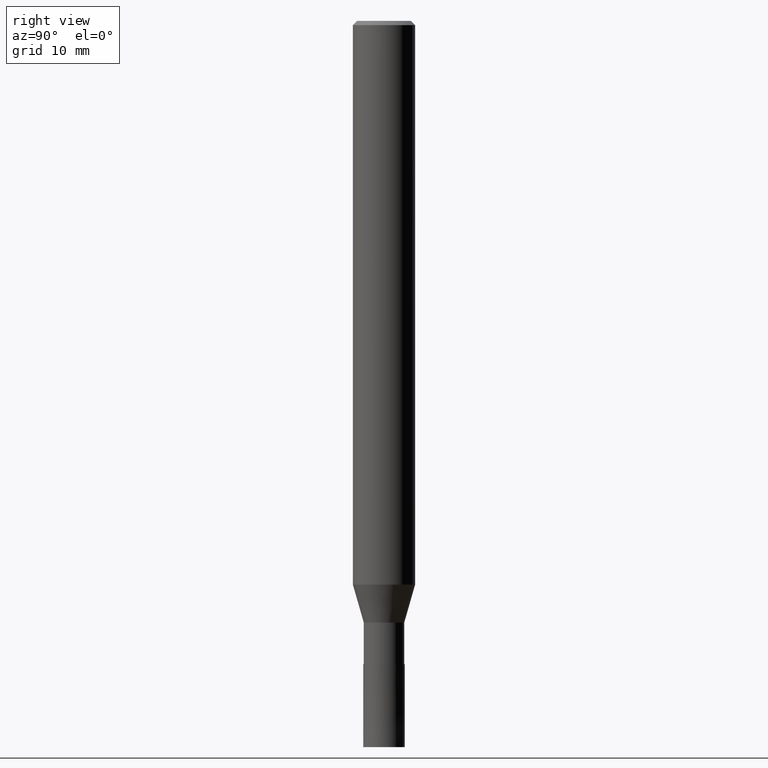
[diagram: clean part render]
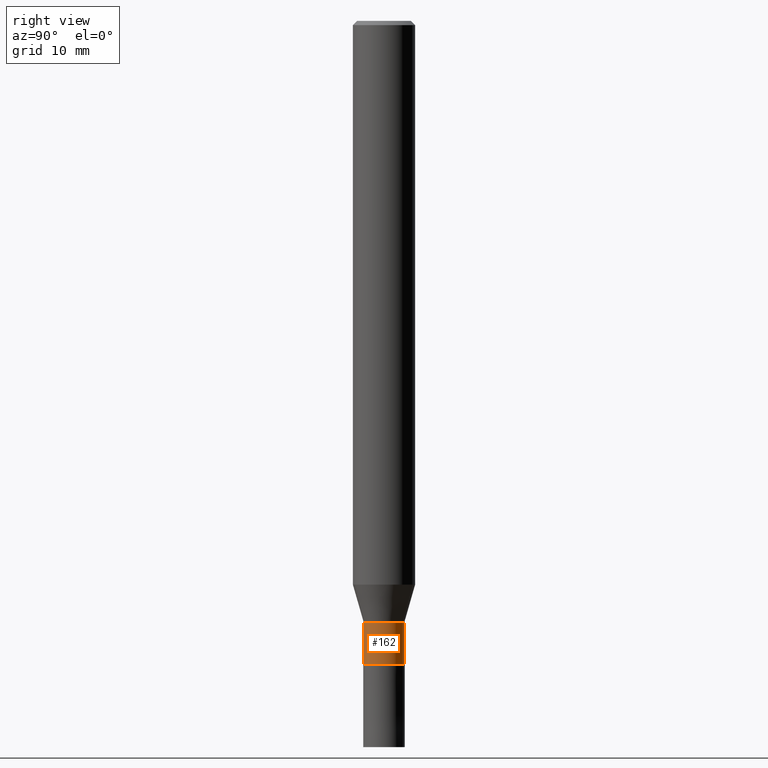
[diagram: same view with one face highlighted and labeled with its STEP entity id]
A machine part, right view. The second image highlights one B-rep face of the part: STEP entity #162.
In plain terms, the highlighted cylindrical surface (edge-blend (fillet) strip) has radius 1.95 mm, axis along (-0, -0, 1).
Its self-contained STEP definition (entity closure, byte-faithful):
#94=VERTEX_POINT('',#231);
#102=VERTEX_POINT('',#239);
#120=EDGE_CURVE('',#94,#184,#262,.T.);
#148=VERTEX_POINT('',#293);
#156=EDGE_CURVE('',#148,#94,#301,.T.);
#162=ADVANCED_FACE('',(#308),#309,.T.);
#166=EDGE_CURVE('',#184,#102,#313,.T.);
#178=EDGE_CURVE('',#148,#102,#326,.T.);
#184=VERTEX_POINT('',#332);
#231=CARTESIAN_POINT('',(0.0,1.94995,-62.0));
#239=CARTESIAN_POINT('',(2.38792115963595E-016,-1.94995,-58.0));
#262=CIRCLE('',#417,1.94995);
#293=CARTESIAN_POINT('',(0.0,1.94995,-58.0));
#301=LINE('',#466,#467);
#308=FACE_OUTER_BOUND('',#474,.T.);
#309=CYLINDRICAL_SURFACE('',#475,1.94995);
#313=LINE('',#482,#483);
#326=CIRCLE('',#500,1.94995);
#332=CARTESIAN_POINT('',(2.38792115963594E-016,-1.94995,-62.0));
#417=AXIS2_PLACEMENT_3D('',#580,#581,#582);
#466=CARTESIAN_POINT('',(-2.38792115963594E-016,1.94995,-60.0));
#467=VECTOR('',#621,1.0);
#474=EDGE_LOOP('',(#631,#632,#633,#634));
#475=AXIS2_PLACEMENT_3D('',#635,#636,#637);
#482=CARTESIAN_POINT('',(2.38792115963594E-016,-1.94995,-60.0));
#483=VECTOR('',#639,1.0);
#500=AXIS2_PLACEMENT_3D('',#652,#653,#654);
#580=CARTESIAN_POINT('',(0.0,0.0,-62.0));
#581=DIRECTION('',(0.0,0.0,-1.0));
#582=DIRECTION('',(0.0,1.0,0.0));
#621=DIRECTION('',(0.0,0.0,-1.0));
#631=ORIENTED_EDGE('',*,*,#156,.F.);
#632=ORIENTED_EDGE('',*,*,#178,.T.);
#633=ORIENTED_EDGE('',*,*,#166,.F.);
#634=ORIENTED_EDGE('',*,*,#120,.F.);
#635=CARTESIAN_POINT('',(0.0,0.0,-60.0));
#636=DIRECTION('',(-0.0,-0.0,1.0));
#637=DIRECTION('',(0.0,1.0,0.0));
#639=DIRECTION('',(-0.0,-0.0,1.0));
#652=CARTESIAN_POINT('',(0.0,0.0,-58.0));
#653=DIRECTION('',(0.0,0.0,-1.0));
#654=DIRECTION('',(0.0,1.0,0.0));